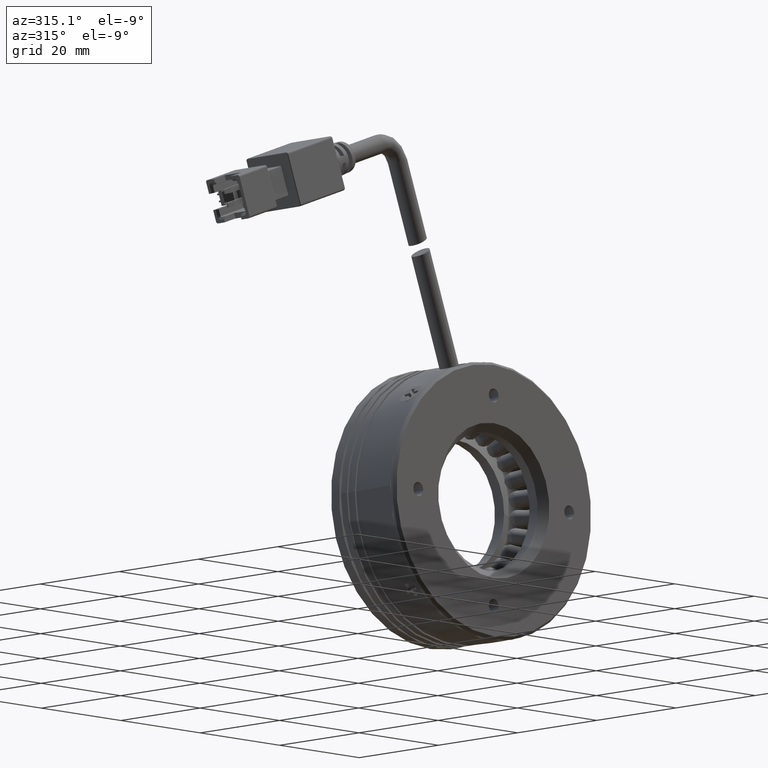
[diagram: clean part render]
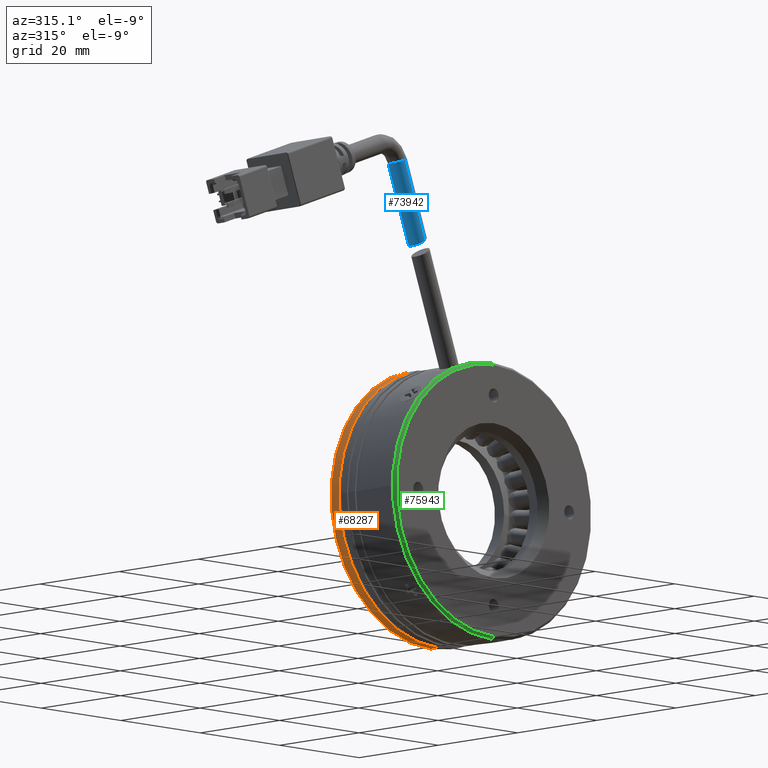
[diagram: same view with three faces highlighted in distinct colors, each labeled with its STEP entity id]
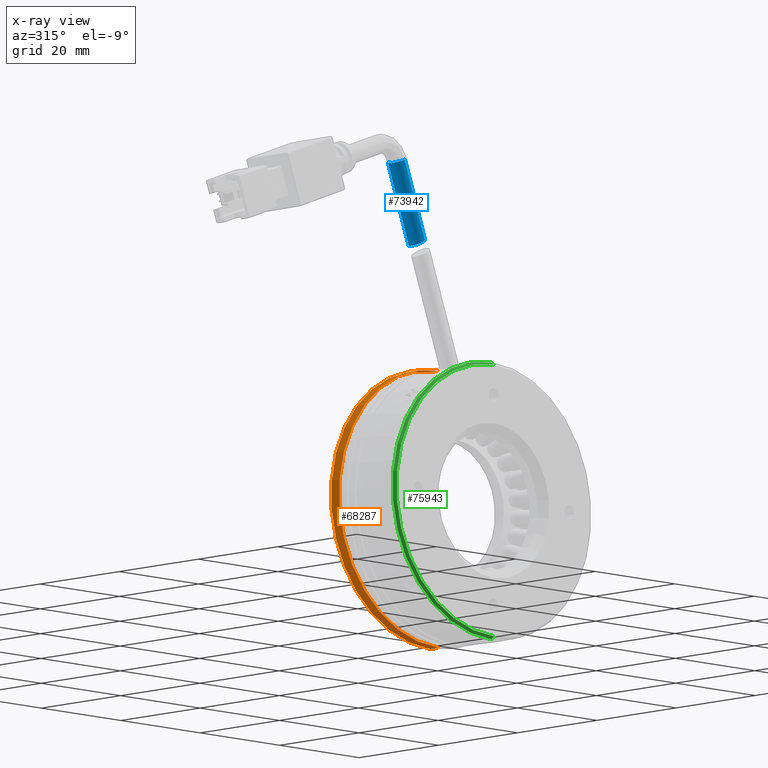
[diagram: x-ray of the same camera — body ghosted, the three highlighted faces saturated]
A machine part, auxiliary view with three faces highlighted in distinct colors.
The next image is the same camera in x-ray (body ghosted, the three faces saturated) — at least one of them is partly hidden behind the body in this view.
Their STEP definitions:

[orange] entity #68287 — the highlighted cylindrical surface (partial cylindrical patch) has radius 25 mm, axis along (-0, 1, -0).
#453 = DIRECTION ( 'NONE',  ( 0.0000000000000000000, 0.0000000000000000000, 1.000000000000000000 ) ) ;
#541 = EDGE_CURVE ( 'NONE', #16342, #78836, #27939, .T. ) ;
#714 = DIRECTION ( 'NONE',  ( 0.0000000000000000000, -1.000000000000000000, 0.0000000000000000000 ) ) ;
#991 = CARTESIAN_POINT ( 'NONE',  ( -9.648541418031049600, 12.14902058707066200, 76.55310575562158700 ) ) ;
#2829 = VERTEX_POINT ( 'NONE', #3476 ) ;
#3476 = CARTESIAN_POINT ( 'NONE',  ( -9.648541418031049600, 10.14902058707066800, 101.5531057556216000 ) ) ;
#3521 = AXIS2_PLACEMENT_3D ( 'NONE', #59028, #52871, #16703 ) ;
#5446 = CARTESIAN_POINT ( 'NONE',  ( -9.648541418031049600, 10.14902058707066800, 76.55310575562158700 ) ) ;
#6273 = CYLINDRICAL_SURFACE ( 'NONE', #3521, 25.00000000000000700 ) ;
#7695 = CARTESIAN_POINT ( 'NONE',  ( -9.648541418031046000, 10.14902058707066800, 51.55310575562158000 ) ) ;
#11617 = DIRECTION ( 'NONE',  ( 0.0000000000000000000, 0.0000000000000000000, 1.000000000000000000 ) ) ;
#13701 = EDGE_LOOP ( 'NONE', ( #39231, #45527, #53421, #72638 ) ) ;
#14405 = CARTESIAN_POINT ( 'NONE',  ( -9.648541418031046000, 12.14902058707066200, 51.55310575562158000 ) ) ;
#16342 = VERTEX_POINT ( 'NONE', #54835 ) ;
#16703 = DIRECTION ( 'NONE',  ( 0.0000000000000000000, 0.0000000000000000000, 1.000000000000000000 ) ) ;
#23275 = VECTOR ( 'NONE', #51799, 1000.000000000000000 ) ;
#26532 = EDGE_CURVE ( 'NONE', #74701, #78836, #29020, .T. ) ;
#27939 = CIRCLE ( 'NONE', #56210, 25.00000000000000700 ) ;
#29020 = LINE ( 'NONE', #75967, #23275 ) ;
#39231 = ORIENTED_EDGE ( 'NONE', *, *, #26532, .F. ) ;
#41635 = VECTOR ( 'NONE', #74496, 1000.000000000000000 ) ;
#44343 = FACE_OUTER_BOUND ( 'NONE', #13701, .T. ) ;
#45527 = ORIENTED_EDGE ( 'NONE', *, *, #57490, .T. ) ;
#47966 = DIRECTION ( 'NONE',  ( -0.0000000000000000000, 1.000000000000000000, -0.0000000000000000000 ) ) ;
#51799 = DIRECTION ( 'NONE',  ( -0.0000000000000000000, 1.000000000000000000, -0.0000000000000000000 ) ) ;
#52871 = DIRECTION ( 'NONE',  ( -0.0000000000000000000, 1.000000000000000000, -0.0000000000000000000 ) ) ;
#53421 = ORIENTED_EDGE ( 'NONE', *, *, #72125, .T. ) ;
#54835 = CARTESIAN_POINT ( 'NONE',  ( -9.648541418031049600, 12.14902058707066200, 101.5531057556216000 ) ) ;
#56210 = AXIS2_PLACEMENT_3D ( 'NONE', #991, #714, #453 ) ;
#57490 = EDGE_CURVE ( 'NONE', #74701, #2829, #66544, .T. ) ;
#57816 = LINE ( 'NONE', #68374, #41635 ) ;
#59028 = CARTESIAN_POINT ( 'NONE',  ( -9.648541418031049600, 30.44269949092722200, 76.55310575562158700 ) ) ;
#66544 = CIRCLE ( 'NONE', #68397, 25.00000000000000700 ) ;
#68287 = ADVANCED_FACE ( 'NONE', ( #44343 ), #6273, .T. ) ;
#68374 = CARTESIAN_POINT ( 'NONE',  ( -9.648541418031049600, 30.44269949092722200, 101.5531057556216000 ) ) ;
#68397 = AXIS2_PLACEMENT_3D ( 'NONE', #5446, #47966, #11617 ) ;
#72125 = EDGE_CURVE ( 'NONE', #2829, #16342, #57816, .T. ) ;
#72638 = ORIENTED_EDGE ( 'NONE', *, *, #541, .T. ) ;
#74496 = DIRECTION ( 'NONE',  ( -0.0000000000000000000, 1.000000000000000000, -0.0000000000000000000 ) ) ;
#74701 = VERTEX_POINT ( 'NONE', #7695 ) ;
#75967 = CARTESIAN_POINT ( 'NONE',  ( -9.648541418031046000, 30.44269949092722200, 51.55310575562158000 ) ) ;
#78836 = VERTEX_POINT ( 'NONE', #14405 ) ;

[blue] entity #73942 — the highlighted cylindrical surface (edge-blend (fillet) strip) has radius 1.75 mm, axis along (0.342, 0, -0.9397).
#3277 = ORIENTED_EDGE ( 'NONE', *, *, #9615, .T. ) ;
#3998 = VERTEX_POINT ( 'NONE', #4381 ) ;
#4381 = CARTESIAN_POINT ( 'NONE',  ( -26.20282382982895400, 0.5960033672920027600, 121.7352930023905600 ) ) ;
#5105 = CARTESIAN_POINT ( 'NONE',  ( -27.63809296591097500, -1.021577592881889500, 120.8319301058775000 ) ) ;
#5365 = CARTESIAN_POINT ( 'NONE',  ( -26.39801393906487800, -2.880548838067343200, 121.5477701563421800 ) ) ;
#5772 = CARTESIAN_POINT ( 'NONE',  ( -32.83426898111103000, -1.253698279794773100, 135.1475327489906700 ) ) ;
#8231 = CARTESIAN_POINT ( 'NONE',  ( -31.19264215389698300, -1.150979412929338000, 135.7450360498694400 ) ) ;
#9615 = EDGE_CURVE ( 'NONE', #3998, #22074, #35822, .T. ) ;
#10992 = CARTESIAN_POINT ( 'NONE',  ( -26.58116563677322800, 0.5159659893591769200, 121.4833175608147300 ) ) ;
#11263 = CARTESIAN_POINT ( 'NONE',  ( -27.60253497734227700, -1.483391741377240200, 120.8463968164031400 ) ) ;
#11531 = CARTESIAN_POINT ( 'NONE',  ( -26.00977550741107400, -2.897962193150676900, 121.8055568455257100 ) ) ;
#12089 = DIRECTION ( 'NONE',  ( 0.3420201433256665500, 4.351763095605514000E-017, -0.9396926207859092100 ) ) ;
#14330 = DIRECTION ( 'NONE',  ( 0.9380724726937411700, 0.05869649535167825700, 0.3414304576450095700 ) ) ;
#16265 = VERTEX_POINT ( 'NONE', #78449 ) ;
#16483 = CARTESIAN_POINT ( 'NONE',  ( -31.19264215389698300, -1.150979412929338000, 135.7450360498694400 ) ) ;
#17044 = AXIS2_PLACEMENT_3D ( 'NONE', #8231, #50793, #14330 ) ;
#17076 = CARTESIAN_POINT ( 'NONE',  ( -26.85025073886192700, 0.3789563754266602200, 121.3082417607876800 ) ) ;
#17336 = CARTESIAN_POINT ( 'NONE',  ( -27.51325508820926700, -1.815392090610348900, 120.8903873396982100 ) ) ;
#17621 = FACE_OUTER_BOUND ( 'NONE', #52707, .T. ) ;
#18993 = AXIS2_PLACEMENT_3D ( 'NONE', #16483, #28494, #59054 ) ;
#21920 = AXIS2_PLACEMENT_3D ( 'NONE', #64812, #28427, #70882 ) ;
#22074 = VERTEX_POINT ( 'NONE', #68556 ) ;
#23197 = CARTESIAN_POINT ( 'NONE',  ( -27.09191552874864000, 0.1846014369939664700, 121.1554422157849300 ) ) ;
#23452 = CARTESIAN_POINT ( 'NONE',  ( -27.36720396117836900, -2.123051787486928800, 120.9668084716993400 ) ) ;
#24079 = EDGE_CURVE ( 'NONE', #16265, #22074, #35681, .T. ) ;
#27920 = EDGE_CURVE ( 'NONE', #60895, #16265, #53368, .T. ) ;
#28427 = DIRECTION ( 'NONE',  ( -0.3420201433256667100, -5.430000222909499800E-017, 0.9396926207859090900 ) ) ;
#28494 = DIRECTION ( 'NONE',  ( 0.3420201433256665500, 4.351763095605514000E-017, -0.9396926207859092100 ) ) ;
#29345 = CARTESIAN_POINT ( 'NONE',  ( -27.30061785236113500, -0.06394883163802490800, 121.0279779230036600 ) ) ;
#29616 = CARTESIAN_POINT ( 'NONE',  ( -27.17416245502150900, -2.389461973195032800, 121.0735540009819100 ) ) ;
#31973 = DIRECTION ( 'NONE',  ( 0.3420201433256665500, 4.351763095605514000E-017, -0.9396926207859092100 ) ) ;
#33763 = VECTOR ( 'NONE', #31973, 1000.000000000000000 ) ;
#34937 = ORIENTED_EDGE ( 'NONE', *, *, #43990, .F. ) ;
#35207 = CARTESIAN_POINT ( 'NONE',  ( -26.29973198241994900, 0.5893421024489200500, 121.6703054717385700 ) ) ;
#35470 = CARTESIAN_POINT ( 'NONE',  ( -27.46385119348687800, -0.3544597991965818300, 120.9318335744597000 ) ) ;
#35681 = LINE ( 'NONE', #62258, #33763 ) ;
#35731 = CARTESIAN_POINT ( 'NONE',  ( -26.93964124282949200, -2.608891041547095400, 121.2103597244288700 ) ) ;
#35822 = B_SPLINE_CURVE_WITH_KNOTS ( 'NONE', 3,
 ( #77630, #35207, #47338, #10992, #53509, #17076, #59622, #23197, #65755, #29345, #71818, #35470, #77903, #41539, #5105, #47618, #11263, #53786, #17336, #59887, #23452, #66010, #29616, #72085, #35731, #78163, #41811, #5365, #47879, #11531 ),
 .UNSPECIFIED., .F., .F.,
 ( 4, 2, 2, 2, 2, 2, 2, 2, 2, 2, 2, 2, 2, 2, 4 ),
 ( 0.005546459130764865200, 0.005892142889880452700, 0.006237826648996040200, 0.006583510408111627700, 0.006929194167227215200, 0.007274877926342802700, 0.007620561685458390200, 0.008311929203689555700, 0.008657612962805138000, 0.009003296721920720300, 0.009348980481036304300, 0.009694664240151886600, 0.01004034799926746900, 0.01038603175838305300, 0.01107739927661419000 ),
 .UNSPECIFIED. ) ;
#35838 = VERTEX_POINT ( 'NONE', #58354 ) ;
#41539 = CARTESIAN_POINT ( 'NONE',  ( -27.60868702084585600, -0.7862784266476612300, 120.8488114563753700 ) ) ;
#41811 = CARTESIAN_POINT ( 'NONE',  ( -26.67690517382014200, -2.770487250831539200, 121.3711560462818400 ) ) ;
#43990 = EDGE_CURVE ( 'NONE', #35838, #60895, #48192, .T. ) ;
#45479 = LINE ( 'NONE', #54609, #52161 ) ;
#47338 = CARTESIAN_POINT ( 'NONE',  ( -26.39468739390075700, 0.5718695509328607400, 121.6068249108259200 ) ) ;
#47618 = CARTESIAN_POINT ( 'NONE',  ( -27.61931038983542300, -1.367138538037188500, 120.8387183777989400 ) ) ;
#47879 = CARTESIAN_POINT ( 'NONE',  ( -26.20358007047091000, -2.911283915704963500, 121.6755896586006100 ) ) ;
#48192 = CIRCLE ( 'NONE', #21920, 1.749999999999996700 ) ;
#50793 = DIRECTION ( 'NONE',  ( -0.3420201433256667100, -5.430000222909499800E-017, 0.9396926207859090900 ) ) ;
#52161 = VECTOR ( 'NONE', #12089, 1000.000000000000000 ) ;
#52707 = EDGE_LOOP ( 'NONE', ( #34937, #53901, #3277, #76464, #63042 ) ) ;
#53368 = CIRCLE ( 'NONE', #17044, 1.749999999999996700 ) ;
#53509 = CARTESIAN_POINT ( 'NONE',  ( -26.67355659956422900, 0.4770120756072926400, 121.4227002584082700 ) ) ;
#53786 = CARTESIAN_POINT ( 'NONE',  ( -27.54936886402140700, -1.707411326843542200, 120.8723003784730100 ) ) ;
#53901 = ORIENTED_EDGE ( 'NONE', *, *, #70644, .T. ) ;
#54609 = CARTESIAN_POINT ( 'NONE',  ( -31.28916631510592700, 0.5960033672920018700, 135.7099041283018700 ) ) ;
#58354 = CARTESIAN_POINT ( 'NONE',  ( -31.28916631510592700, 0.5960033672920018700, 135.7099041283018700 ) ) ;
#58542 = CYLINDRICAL_SURFACE ( 'NONE', #18993, 1.750000000000000200 ) ;
#59054 = DIRECTION ( 'NONE',  ( 0.05515666354796523000, -0.9982758744121940100, 0.02007538375289488800 ) ) ;
#59622 = CARTESIAN_POINT ( 'NONE',  ( -26.93392750789112700, 0.3204769873564156100, 121.2547947639107400 ) ) ;
#59887 = CARTESIAN_POINT ( 'NONE',  ( -27.42230647013259000, -2.023287194745701200, 120.9375532086976900 ) ) ;
#60895 = VERTEX_POINT ( 'NONE', #5772 ) ;
#62258 = CARTESIAN_POINT ( 'NONE',  ( -31.09611799268804700, -2.897962193150677800, 135.7801679714369800 ) ) ;
#63042 = ORIENTED_EDGE ( 'NONE', *, *, #27920, .F. ) ;
#64812 = CARTESIAN_POINT ( 'NONE',  ( -31.19264215389698300, -1.150979412929338000, 135.7450360498694400 ) ) ;
#65755 = CARTESIAN_POINT ( 'NONE',  ( -27.16684311148764100, 0.1062095730961408500, 121.1091792789399500 ) ) ;
#66010 = CARTESIAN_POINT ( 'NONE',  ( -27.24336814216195900, -2.305512953466574400, 121.0346895973063800 ) ) ;
#68556 = CARTESIAN_POINT ( 'NONE',  ( -26.00977550741107400, -2.897962193150676900, 121.8055568455257100 ) ) ;
#70644 = EDGE_CURVE ( 'NONE', #35838, #3998, #45479, .T. ) ;
#70882 = DIRECTION ( 'NONE',  ( 0.9380724726937411700, 0.05869649535167739700, 0.3414304576450095700 ) ) ;
#71818 = CARTESIAN_POINT ( 'NONE',  ( -27.36015109579412300, -0.1560290677733970900, 120.9925943642146800 ) ) ;
#72085 = CARTESIAN_POINT ( 'NONE',  ( -27.02110105192505800, -2.542360612037102700, 121.1620779374718600 ) ) ;
#73942 = ADVANCED_FACE ( 'NONE', ( #17621 ), #58542, .T. ) ;
#76464 = ORIENTED_EDGE ( 'NONE', *, *, #24079, .F. ) ;
#77630 = CARTESIAN_POINT ( 'NONE',  ( -26.20282382982895400, 0.5960033672920027600, 121.7352930023905600 ) ) ;
#77903 = CARTESIAN_POINT ( 'NONE',  ( -27.50756861515605300, -0.4605658426825695600, 120.9067193826178200 ) ) ;
#78163 = CARTESIAN_POINT ( 'NONE',  ( -26.76809719306788400, -2.722744714384699400, 121.3145494545355500 ) ) ;
#78449 = CARTESIAN_POINT ( 'NONE',  ( -31.09611799268804700, -2.897962193150677800, 135.7801679714369800 ) ) ;

[green] entity #75943 — the highlighted conical surface has half-angle 45 deg.
#4679 = FACE_OUTER_BOUND ( 'NONE', #77316, .T. ) ;
#4833 = DIRECTION ( 'NONE',  ( 0.0000000000000000000, 1.000000000000000000, 0.0000000000000000000 ) ) ;
#5127 = VECTOR ( 'NONE', #75777, 1000.000000000000000 ) ;
#7479 = CARTESIAN_POINT ( 'NONE',  ( -9.648541418031040700, -3.850979412929342400, 76.55310575562158700 ) ) ;
#11847 = CARTESIAN_POINT ( 'NONE',  ( -9.648541418031037200, -3.350979412929355700, 51.55310575562157300 ) ) ;
#12943 = VERTEX_POINT ( 'NONE', #11847 ) ;
#13398 = AXIS2_PLACEMENT_3D ( 'NONE', #68196, #31795, #74319 ) ;
#13598 = DIRECTION ( 'NONE',  ( 1.416100796715759600E-016, 0.0000000000000000000, -1.000000000000000000 ) ) ;
#18203 = ORIENTED_EDGE ( 'NONE', *, *, #32496, .T. ) ;
#19703 = VERTEX_POINT ( 'NONE', #52316 ) ;
#21518 = DIRECTION ( 'NONE',  ( -1.700067674911266400E-016, 0.7071067811865401300, 0.7071067811865549000 ) ) ;
#24644 = VERTEX_POINT ( 'NONE', #68552 ) ;
#25071 = VECTOR ( 'NONE', #21518, 1000.000000000000000 ) ;
#26698 = CARTESIAN_POINT ( 'NONE',  ( -9.648541418031037200, -3.850979412929342400, 52.05310575562156600 ) ) ;
#28005 = ORIENTED_EDGE ( 'NONE', *, *, #52483, .F. ) ;
#29317 = DIRECTION ( 'NONE',  ( 1.387778780781444900E-016, 0.0000000000000000000, -1.000000000000000000 ) ) ;
#31795 = DIRECTION ( 'NONE',  ( -0.0000000000000000000, -1.000000000000000000, -0.0000000000000000000 ) ) ;
#32496 = EDGE_CURVE ( 'NONE', #19703, #24644, #71603, .T. ) ;
#35387 = EDGE_CURVE ( 'NONE', #24644, #12943, #68480, .T. ) ;
#37697 = EDGE_CURVE ( 'NONE', #59304, #19703, #42705, .T. ) ;
#40201 = ORIENTED_EDGE ( 'NONE', *, *, #35387, .T. ) ;
#42705 = CIRCLE ( 'NONE', #63016, 24.50000000000002100 ) ;
#44825 = ORIENTED_EDGE ( 'NONE', *, *, #37697, .T. ) ;
#45468 = CARTESIAN_POINT ( 'NONE',  ( -9.648541418031037200, -3.350979412929355700, 51.55310575562157300 ) ) ;
#49997 = DIRECTION ( 'NONE',  ( 0.0000000000000000000, 1.000000000000000000, 0.0000000000000000000 ) ) ;
#52316 = CARTESIAN_POINT ( 'NONE',  ( -9.648541418031046000, -3.850979412929342400, 101.0531057556216200 ) ) ;
#52483 = EDGE_CURVE ( 'NONE', #59304, #12943, #69819, .T. ) ;
#57962 = CONICAL_SURFACE ( 'NONE', #68564, 25.00000000000001400, 0.7853981633974587200 ) ;
#58497 = CARTESIAN_POINT ( 'NONE',  ( -9.648541418031046000, -3.350979412929355700, 101.5531057556216000 ) ) ;
#59304 = VERTEX_POINT ( 'NONE', #26698 ) ;
#63016 = AXIS2_PLACEMENT_3D ( 'NONE', #7479, #49997, #13598 ) ;
#68196 = CARTESIAN_POINT ( 'NONE',  ( -9.648541418031040700, -3.350979412929355700, 76.55310575562158700 ) ) ;
#68480 = CIRCLE ( 'NONE', #13398, 25.00000000000001400 ) ;
#68552 = CARTESIAN_POINT ( 'NONE',  ( -9.648541418031046000, -3.350979412929355700, 101.5531057556216000 ) ) ;
#68564 = AXIS2_PLACEMENT_3D ( 'NONE', #71533, #4833, #29317 ) ;
#69819 = LINE ( 'NONE', #45468, #5127 ) ;
#71533 = CARTESIAN_POINT ( 'NONE',  ( -9.648541418031040700, -3.350979412929355700, 76.55310575562158700 ) ) ;
#71603 = LINE ( 'NONE', #58497, #25071 ) ;
#74319 = DIRECTION ( 'NONE',  ( 1.387778780781444900E-016, 0.0000000000000000000, -1.000000000000000000 ) ) ;
#75777 = DIRECTION ( 'NONE',  ( 8.341116186757640900E-017, 0.7071067811865401300, -0.7071067811865549000 ) ) ;
#75943 = ADVANCED_FACE ( 'NONE', ( #4679 ), #57962, .T. ) ;
#77316 = EDGE_LOOP ( 'NONE', ( #44825, #18203, #40201, #28005 ) ) ;